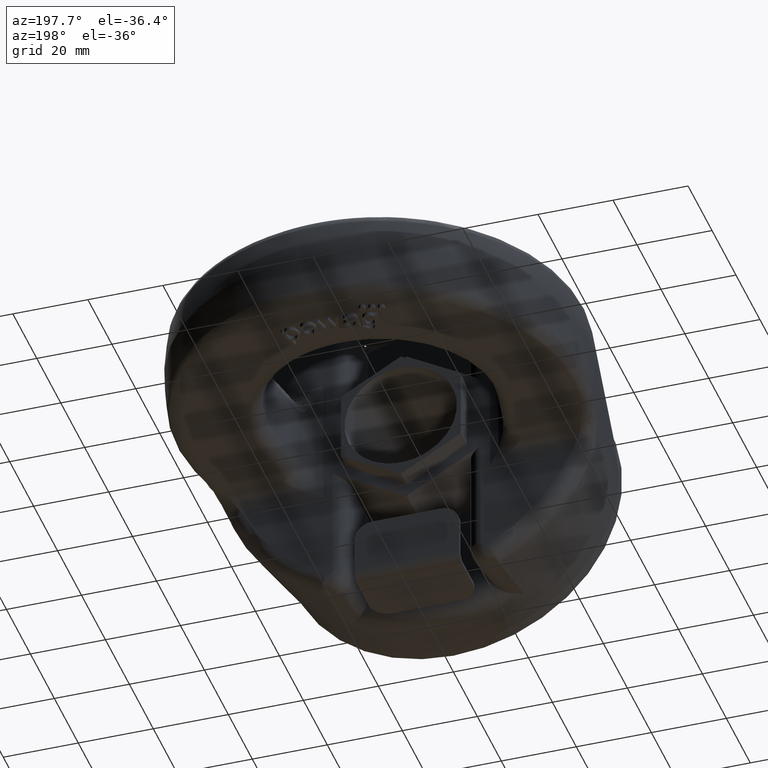
[diagram: clean part render]
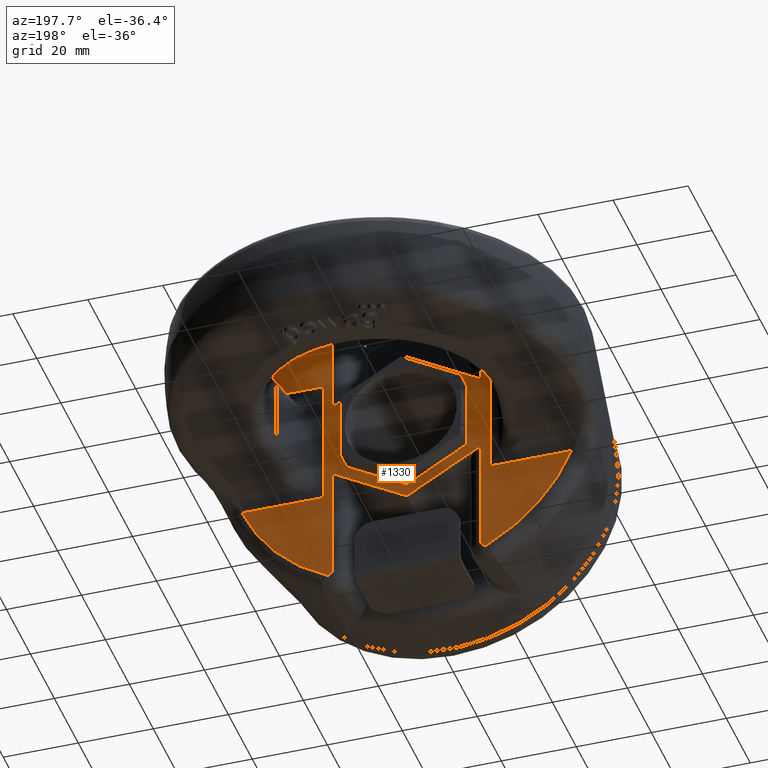
[diagram: same view with one face highlighted and labeled with its STEP entity id]
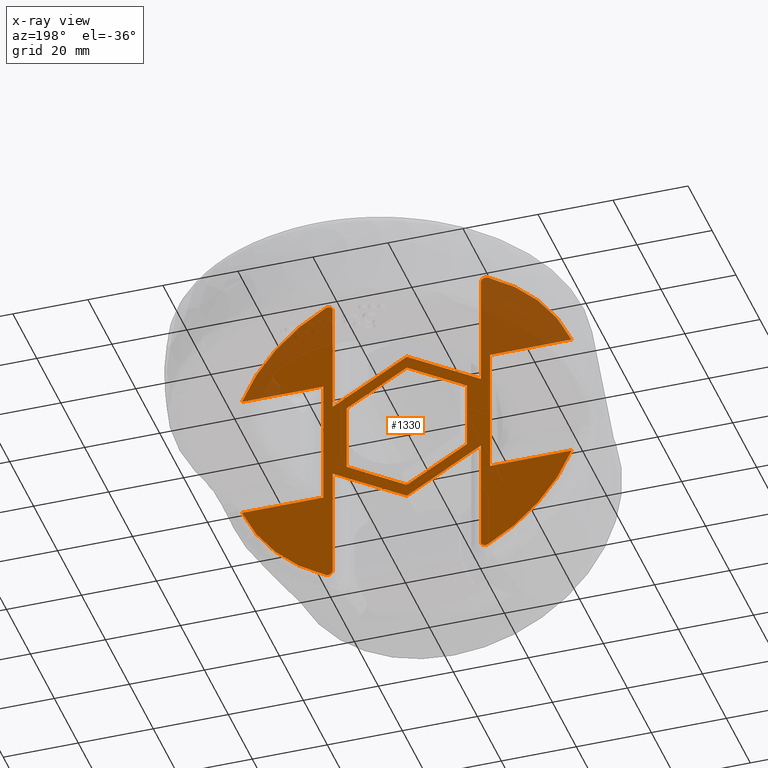
[diagram: x-ray of the same camera — body ghosted, the highlighted face saturated]
A machine part, auxiliary view. The second image highlights one B-rep face of the part: STEP entity #1330.
The next image is the same camera in x-ray: the body ghosted, the highlighted face saturated — about 29% of this face is hidden behind the body in this view.
In plain terms, the highlighted planar face has unit normal (0, 1, 0).
Its self-contained STEP definition (entity closure, byte-faithful):
#1330=ADVANCED_FACE('',(#1781,#1782),#1567,.T.);
#1567=PLANE('',#5133);
#1695=CIRCLE('',#5129,47.2865928838247);
#1696=CIRCLE('',#5130,47.2865928838247);
#1697=CIRCLE('',#5131,47.2865928838247);
#1698=CIRCLE('',#5132,47.2865928838247);
#1781=FACE_BOUND('',#1844,.T.);
#1782=FACE_BOUND('',#1845,.T.);
#1844=EDGE_LOOP('',(#2799,#2800,#2801,#2802,#2803,#2804,#2805,#2806,#2807,
#2808,#2809,#2810,#2811,#2812,#2813,#2814,#2815,#2816,#2817,#2818,#2819,
#2820));
#1845=EDGE_LOOP('',(#2821,#2822,#2823,#2824,#2825,#2826));
#2142=LINE('',#6684,#2412);
#2143=LINE('',#6687,#2413);
#2144=LINE('',#6714,#2414);
#2145=LINE('',#6716,#2415);
#2146=LINE('',#6718,#2416);
#2147=LINE('',#6720,#2417);
#2148=LINE('',#6744,#2418);
#2149=LINE('',#6746,#2419);
#2150=LINE('',#6748,#2420);
#2151=LINE('',#6775,#2421);
#2152=LINE('',#6777,#2422);
#2153=LINE('',#6779,#2423);
#2154=LINE('',#6781,#2424);
#2155=LINE('',#6805,#2425);
#2156=LINE('',#6806,#2426);
#2157=LINE('',#6809,#2427);
#2158=LINE('',#6811,#2428);
#2159=LINE('',#6813,#2429);
#2160=LINE('',#6815,#2430);
#2161=LINE('',#6817,#2431);
#2412=VECTOR('',#5471,1.);
#2413=VECTOR('',#5472,1.);
#2414=VECTOR('',#5475,1.);
#2415=VECTOR('',#5476,1.);
#2416=VECTOR('',#5477,1.);
#2417=VECTOR('',#5478,1.);
#2418=VECTOR('',#5481,1.);
#2419=VECTOR('',#5482,1.);
#2420=VECTOR('',#5483,1.);
#2421=VECTOR('',#5486,1.);
#2422=VECTOR('',#5487,1.);
#2423=VECTOR('',#5488,1.);
#2424=VECTOR('',#5489,1.);
#2425=VECTOR('',#5492,1.);
#2426=VECTOR('',#5493,1.);
#2427=VECTOR('',#5494,1.);
#2428=VECTOR('',#5495,1.);
#2429=VECTOR('',#5496,1.);
#2430=VECTOR('',#5497,1.);
#2431=VECTOR('',#5498,1.);
#2799=ORIENTED_EDGE('',*,*,#4351,.T.);
#2800=ORIENTED_EDGE('',*,*,#4352,.T.);
#2801=ORIENTED_EDGE('',*,*,#4353,.T.);
#2802=ORIENTED_EDGE('',*,*,#4354,.T.);
#2803=ORIENTED_EDGE('',*,*,#4355,.T.);
#2804=ORIENTED_EDGE('',*,*,#4356,.T.);
#2805=ORIENTED_EDGE('',*,*,#4357,.T.);
#2806=ORIENTED_EDGE('',*,*,#4358,.T.);
#2807=ORIENTED_EDGE('',*,*,#4359,.T.);
#2808=ORIENTED_EDGE('',*,*,#4360,.T.);
#2809=ORIENTED_EDGE('',*,*,#4361,.T.);
#2810=ORIENTED_EDGE('',*,*,#4362,.T.);
#2811=ORIENTED_EDGE('',*,*,#4363,.T.);
#2812=ORIENTED_EDGE('',*,*,#4364,.T.);
#2813=ORIENTED_EDGE('',*,*,#4365,.T.);
#2814=ORIENTED_EDGE('',*,*,#4366,.T.);
#2815=ORIENTED_EDGE('',*,*,#4367,.T.);
#2816=ORIENTED_EDGE('',*,*,#4368,.T.);
#2817=ORIENTED_EDGE('',*,*,#4369,.T.);
#2818=ORIENTED_EDGE('',*,*,#4370,.T.);
#2819=ORIENTED_EDGE('',*,*,#4371,.T.);
#2820=ORIENTED_EDGE('',*,*,#4372,.T.);
#2821=ORIENTED_EDGE('',*,*,#4373,.T.);
#2822=ORIENTED_EDGE('',*,*,#4374,.T.);
#2823=ORIENTED_EDGE('',*,*,#4375,.T.);
#2824=ORIENTED_EDGE('',*,*,#4376,.T.);
#2825=ORIENTED_EDGE('',*,*,#4377,.F.);
#2826=ORIENTED_EDGE('',*,*,#4378,.T.);
#3963=VERTEX_POINT('',#6685);
#3964=VERTEX_POINT('',#6686);
#3965=VERTEX_POINT('',#6688);
#3966=VERTEX_POINT('',#6690);
#3967=VERTEX_POINT('',#6713);
#3968=VERTEX_POINT('',#6715);
#3969=VERTEX_POINT('',#6717);
#3970=VERTEX_POINT('',#6719);
#3971=VERTEX_POINT('',#6721);
#3972=VERTEX_POINT('',#6741);
#3973=VERTEX_POINT('',#6743);
#3974=VERTEX_POINT('',#6745);
#3975=VERTEX_POINT('',#6747);
#3976=VERTEX_POINT('',#6749);
#3977=VERTEX_POINT('',#6751);
#3978=VERTEX_POINT('',#6774);
#3979=VERTEX_POINT('',#6776);
#3980=VERTEX_POINT('',#6778);
#3981=VERTEX_POINT('',#6780);
#3982=VERTEX_POINT('',#6782);
#3983=VERTEX_POINT('',#6802);
#3984=VERTEX_POINT('',#6804);
#3985=VERTEX_POINT('',#6807);
#3986=VERTEX_POINT('',#6808);
#3987=VERTEX_POINT('',#6810);
#3988=VERTEX_POINT('',#6812);
#3989=VERTEX_POINT('',#6814);
#3990=VERTEX_POINT('',#6816);
#4351=EDGE_CURVE('',#3963,#3964,#2142,.T.);
#4352=EDGE_CURVE('',#3964,#3965,#2143,.T.);
#4353=EDGE_CURVE('',#3965,#3966,#1695,.T.);
#4354=EDGE_CURVE('',#3966,#3967,#4878,.T.);
#4355=EDGE_CURVE('',#3967,#3968,#2144,.T.);
#4356=EDGE_CURVE('',#3968,#3969,#2145,.T.);
#4357=EDGE_CURVE('',#3969,#3970,#2146,.T.);
#4358=EDGE_CURVE('',#3970,#3971,#2147,.T.);
#4359=EDGE_CURVE('',#3971,#3972,#4879,.T.);
#4360=EDGE_CURVE('',#3972,#3973,#1696,.T.);
#4361=EDGE_CURVE('',#3973,#3974,#2148,.T.);
#4362=EDGE_CURVE('',#3974,#3975,#2149,.T.);
#4363=EDGE_CURVE('',#3975,#3976,#2150,.T.);
#4364=EDGE_CURVE('',#3976,#3977,#1697,.T.);
#4365=EDGE_CURVE('',#3977,#3978,#4880,.T.);
#4366=EDGE_CURVE('',#3978,#3979,#2151,.T.);
#4367=EDGE_CURVE('',#3979,#3980,#2152,.T.);
#4368=EDGE_CURVE('',#3980,#3981,#2153,.T.);
#4369=EDGE_CURVE('',#3981,#3982,#2154,.T.);
#4370=EDGE_CURVE('',#3982,#3983,#4881,.T.);
#4371=EDGE_CURVE('',#3983,#3984,#1698,.T.);
#4372=EDGE_CURVE('',#3984,#3963,#2155,.T.);
#4373=EDGE_CURVE('',#3985,#3986,#2156,.T.);
#4374=EDGE_CURVE('',#3986,#3987,#2157,.T.);
#4375=EDGE_CURVE('',#3987,#3988,#2158,.T.);
#4376=EDGE_CURVE('',#3988,#3989,#2159,.T.);
#4377=EDGE_CURVE('',#3990,#3989,#2160,.T.);
#4378=EDGE_CURVE('',#3990,#3985,#2161,.T.);
#4878=B_SPLINE_CURVE_WITH_KNOTS('',3,(#6691,#6692,#6693,#6694,#6695,#6696,
#6697,#6698,#6699,#6700,#6701,#6702,#6703,#6704,#6705,#6706,#6707,#6708,
#6709,#6710,#6711,#6712),.UNSPECIFIED.,.F.,.F.,(4,3,3,3,3,3,3,4),(0.,0.161379735076476,
0.322817284316198,0.483581680846193,0.645602352468238,0.810647740503238,
0.979259701387584,1.),.UNSPECIFIED.);
#4879=B_SPLINE_CURVE_WITH_KNOTS('',3,(#6722,#6723,#6724,#6725,#6726,#6727,
#6728,#6729,#6730,#6731,#6732,#6733,#6734,#6735,#6736,#6737,#6738,#6739,
#6740),.UNSPECIFIED.,.F.,.F.,(4,3,3,3,3,3,4),(0.,0.170810437629313,0.341729613949098,
0.510861886610194,0.67635795447875,0.838561292058408,1.),.UNSPECIFIED.);
#4880=B_SPLINE_CURVE_WITH_KNOTS('',3,(#6752,#6753,#6754,#6755,#6756,#6757,
#6758,#6759,#6760,#6761,#6762,#6763,#6764,#6765,#6766,#6767,#6768,#6769,
#6770,#6771,#6772,#6773),.UNSPECIFIED.,.F.,.F.,(4,3,3,3,3,3,3,4),(0.,0.161379735076477,
0.322817284316198,0.483581680846193,0.645602352468238,0.810647740503238,
0.979259701387584,1.),.UNSPECIFIED.);
#4881=B_SPLINE_CURVE_WITH_KNOTS('',3,(#6783,#6784,#6785,#6786,#6787,#6788,
#6789,#6790,#6791,#6792,#6793,#6794,#6795,#6796,#6797,#6798,#6799,#6800,
#6801),.UNSPECIFIED.,.F.,.F.,(4,3,3,3,3,3,4),(0.,0.170810437629314,0.341729613949099,
0.510861886610194,0.676357954478751,0.83856129205841,1.),.UNSPECIFIED.);
#5129=AXIS2_PLACEMENT_3D('',#6689,#5473,#5474);
#5130=AXIS2_PLACEMENT_3D('',#6742,#5479,#5480);
#5131=AXIS2_PLACEMENT_3D('',#6750,#5484,#5485);
#5132=AXIS2_PLACEMENT_3D('',#6803,#5490,#5491);
#5133=AXIS2_PLACEMENT_3D('',#6818,#5499,#5500);
#5471=DIRECTION('',(0.,0.,-1.));
#5472=DIRECTION('',(1.,0.,2.34291072916505E-15));
#5473=DIRECTION('',(0.,1.,0.));
#5474=DIRECTION('',(2.34291072916505E-15,0.,-1.));
#5475=DIRECTION('',(-2.34291072916505E-15,0.,1.));
#5476=DIRECTION('',(-0.866025403784438,0.,-0.500000000000002));
#5477=DIRECTION('',(-0.86602540378444,0.,0.499999999999997));
#5478=DIRECTION('',(2.34291072916505E-15,0.,-1.));
#5479=DIRECTION('',(0.,1.,0.));
#5480=DIRECTION('',(2.34291072916505E-15,0.,-1.));
#5481=DIRECTION('',(1.,0.,2.34291072916505E-15));
#5482=DIRECTION('',(0.,0.,1.));
#5483=DIRECTION('',(-1.,0.,0.));
#5484=DIRECTION('',(0.,1.,0.));
#5485=DIRECTION('',(0.,0.,1.));
#5486=DIRECTION('',(0.,0.,-1.));
#5487=DIRECTION('',(0.866025403784439,0.,0.5));
#5488=DIRECTION('',(0.866025403784439,0.,-0.499999999999999));
#5489=DIRECTION('',(0.,0.,1.));
#5490=DIRECTION('',(0.,1.,0.));
#5491=DIRECTION('',(0.,0.,1.));
#5492=DIRECTION('',(-1.,0.,0.));
#5493=DIRECTION('',(0.866025403784438,0.,0.500000000000001));
#5494=DIRECTION('',(0.,0.,1.));
#5495=DIRECTION('',(-0.866025403784439,0.,0.499999999999999));
#5496=DIRECTION('',(-0.866025403784439,0.,-0.499999999999999));
#5497=DIRECTION('',(0.,0.,1.));
#5498=DIRECTION('',(0.86602540378444,0.,-0.499999999999997));
#5499=DIRECTION('',(0.,1.,0.));
#5500=DIRECTION('',(0.,0.,1.));
#6684=CARTESIAN_POINT('',(22.2265672836431,39.,0.));
#6685=CARTESIAN_POINT('',(22.2265672836431,39.,17.5));
#6686=CARTESIAN_POINT('',(22.2265672836432,39.,-17.5));
#6687=CARTESIAN_POINT('',(26.3690886608367,39.,-17.4999999999999));
#6688=CARTESIAN_POINT('',(43.9291687442477,39.,-17.4999999999999));
#6689=CARTESIAN_POINT('',(1.26637660324685E-13,39.,-4.77779176153226E-14));
#6690=CARTESIAN_POINT('',(21.559989272144,39.,-42.0854930961445));
#6691=CARTESIAN_POINT('',(21.559989272144,39.,-42.0854930961445));
#6692=CARTESIAN_POINT('',(21.4376870540187,39.,-42.1481473343806));
#6693=CARTESIAN_POINT('',(21.3029566374001,39.,-42.1907328114198));
#6694=CARTESIAN_POINT('',(21.1668238906371,39.,-42.2094747799948));
#6695=CARTESIAN_POINT('',(21.0306586768623,39.,-42.2282212184401));
#6696=CARTESIAN_POINT('',(20.8893531303641,39.,-42.2236099015466));
#6697=CARTESIAN_POINT('',(20.7546934335023,39.,-42.1960570353102));
#6698=CARTESIAN_POINT('',(20.6205583231553,39.,-42.1686115052881));
#6699=CARTESIAN_POINT('',(20.4893603941383,39.,-42.1176845298853));
#6700=CARTESIAN_POINT('',(20.3716708755526,39.,-42.0477226676954));
#6701=CARTESIAN_POINT('',(20.2530461299273,39.,-41.9772048492398));
#6702=CARTESIAN_POINT('',(20.1449362429328,39.,-41.8854893045933));
#6703=CARTESIAN_POINT('',(20.0556639829611,39.,-41.7802512098084));
#6704=CARTESIAN_POINT('',(19.9647356840415,39.,-41.6730609029497));
#6705=CARTESIAN_POINT('',(19.8908883261947,39.,-41.5489923374411));
#6706=CARTESIAN_POINT('',(19.8396151697288,39.,-41.4181153690513));
#6707=CARTESIAN_POINT('',(19.7872503295101,39.,-41.2844518302638));
#6708=CARTESIAN_POINT('',(19.7570028489362,39.,-41.1400779647963));
#6709=CARTESIAN_POINT('',(19.7511035959102,39.,-40.9966442975279));
#6710=CARTESIAN_POINT('',(19.7503680064558,39.,-40.9787592716489));
#6711=CARTESIAN_POINT('',(19.7500000000001,39.,-40.9608553458286));
#6712=CARTESIAN_POINT('',(19.7500000000001,39.,-40.9429551993896));
#6713=CARTESIAN_POINT('',(19.7500000000001,39.,-40.9429551993896));
#6714=CARTESIAN_POINT('',(19.7500000000001,39.,-60.5));
#6715=CARTESIAN_POINT('',(19.75,39.,-10.5366424127106));
#6716=CARTESIAN_POINT('',(9.50000000000002,39.0000000000001,-16.4544826719043));
#6717=CARTESIAN_POINT('',(5.15102655437352E-14,39.0000000000001,-21.9393102292058));
#6718=CARTESIAN_POINT('',(-9.49999999999994,39.0000000000001,-16.4544826719044));
#6719=CARTESIAN_POINT('',(-19.75,39.,-10.5366424127107));
#6720=CARTESIAN_POINT('',(-19.7499999999999,39.,-60.5000000000001));
#6721=CARTESIAN_POINT('',(-19.7499999999999,39.,-40.9429551993896));
#6722=CARTESIAN_POINT('',(-19.7499999999999,39.,-40.9429551993896));
#6723=CARTESIAN_POINT('',(-19.7499999999999,39.,-41.0884116115924));
#6724=CARTESIAN_POINT('',(-19.7749484929304,39.,-41.2358781560344));
#6725=CARTESIAN_POINT('',(-19.8229633490812,39.,-41.373181256654));
#6726=CARTESIAN_POINT('',(-19.870995190916,39.,-41.5105329294714));
#6727=CARTESIAN_POINT('',(-19.9434931318007,39.,-41.6415448687736));
#6728=CARTESIAN_POINT('',(-20.0347197689157,39.,-41.7549037702171));
#6729=CARTESIAN_POINT('',(-20.124981916415,39.,-41.8670641896519));
#6730=CARTESIAN_POINT('',(-20.2361826502163,39.,-41.9650963135186));
#6731=CARTESIAN_POINT('',(-20.3590574017108,39.,-42.0401230447826));
#6732=CARTESIAN_POINT('',(-20.479320726349,39.,-42.1135552513898));
#6733=CARTESIAN_POINT('',(-20.6141900479079,39.,-42.1670047069527));
#6734=CARTESIAN_POINT('',(-20.752180227206,39.,-42.1955400646258));
#6735=CARTESIAN_POINT('',(-20.8874811220199,39.,-42.2235192979787));
#6736=CARTESIAN_POINT('',(-21.0295562711417,39.,-42.2283281820263));
#6737=CARTESIAN_POINT('',(-21.1664348065021,39.,-42.2095282832491));
#6738=CARTESIAN_POINT('',(-21.3027014148438,39.,-42.1908124310025));
#6739=CARTESIAN_POINT('',(-21.4375721931561,39.,-42.1482061764848));
#6740=CARTESIAN_POINT('',(-21.5599892721457,39.,-42.0854930961435));
#6741=CARTESIAN_POINT('',(-21.5599892721457,39.,-42.0854930961435));
#6742=CARTESIAN_POINT('',(1.26637660324685E-13,39.,-4.77779176153226E-14));
#6743=CARTESIAN_POINT('',(-43.9291687442475,39.,-17.5000000000001));
#6744=CARTESIAN_POINT('',(26.3690886608367,39.,-17.4999999999999));
#6745=CARTESIAN_POINT('',(-22.2265672836431,39.,-17.5000000000001));
#6746=CARTESIAN_POINT('',(-22.2265672836431,39.,12.5));
#6747=CARTESIAN_POINT('',(-22.2265672836431,39.,17.5));
#6748=CARTESIAN_POINT('',(-26.3690886608366,39.,17.5));
#6749=CARTESIAN_POINT('',(-43.9291687442477,39.,17.5));
#6750=CARTESIAN_POINT('',(-1.26637660324685E-13,39.,4.77779176153229E-14));
#6751=CARTESIAN_POINT('',(-21.5599892721439,39.,42.0854930961446));
#6752=CARTESIAN_POINT('',(-21.5599892721439,39.,42.0854930961446));
#6753=CARTESIAN_POINT('',(-21.4376870540186,39.,42.1481473343806));
#6754=CARTESIAN_POINT('',(-21.3029566374,39.,42.1907328114199));
#6755=CARTESIAN_POINT('',(-21.166823890637,39.,42.2094747799949));
#6756=CARTESIAN_POINT('',(-21.0306586768622,39.,42.2282212184401));
#6757=CARTESIAN_POINT('',(-20.889353130364,39.,42.2236099015466));
#6758=CARTESIAN_POINT('',(-20.7546934335022,39.,42.1960570353103));
#6759=CARTESIAN_POINT('',(-20.6205583231552,39.,42.1686115052881));
#6760=CARTESIAN_POINT('',(-20.4893603941382,39.,42.1176845298854));
#6761=CARTESIAN_POINT('',(-20.3716708755525,39.,42.0477226676955));
#6762=CARTESIAN_POINT('',(-20.2530461299272,39.,41.9772048492399));
#6763=CARTESIAN_POINT('',(-20.1449362429327,39.,41.8854893045933));
#6764=CARTESIAN_POINT('',(-20.055663982961,39.,41.7802512098085));
#6765=CARTESIAN_POINT('',(-19.9647356840414,39.,41.6730609029498));
#6766=CARTESIAN_POINT('',(-19.8908883261946,39.,41.5489923374412));
#6767=CARTESIAN_POINT('',(-19.8396151697287,39.,41.4181153690514));
#6768=CARTESIAN_POINT('',(-19.78725032951,39.,41.2844518302639));
#6769=CARTESIAN_POINT('',(-19.7570028489361,39.,41.1400779647964));
#6770=CARTESIAN_POINT('',(-19.7511035959101,39.,40.996644297528));
#6771=CARTESIAN_POINT('',(-19.7503680064558,39.,40.978759271649));
#6772=CARTESIAN_POINT('',(-19.75,39.,40.9608553458286));
#6773=CARTESIAN_POINT('',(-19.75,39.,40.9429551993896));
#6774=CARTESIAN_POINT('',(-19.75,39.,40.9429551993896));
#6775=CARTESIAN_POINT('',(-19.75,39.,60.5000000000001));
#6776=CARTESIAN_POINT('',(-19.75,39.,10.5366424127107));
#6777=CARTESIAN_POINT('',(-9.49999999999998,39.0000000000001,16.4544826719043));
#6778=CARTESIAN_POINT('',(-1.08420217248551E-16,39.0000000000001,21.9393102292058));
#6779=CARTESIAN_POINT('',(9.49999999999998,39.0000000000001,16.4544826719043));
#6780=CARTESIAN_POINT('',(19.75,39.,10.5366424127107));
#6781=CARTESIAN_POINT('',(19.75,39.,60.5000000000001));
#6782=CARTESIAN_POINT('',(19.75,39.,40.9429551993895));
#6783=CARTESIAN_POINT('',(19.75,39.,40.9429551993895));
#6784=CARTESIAN_POINT('',(19.75,39.,41.0884116115924));
#6785=CARTESIAN_POINT('',(19.7749484929305,39.,41.2358781560343));
#6786=CARTESIAN_POINT('',(19.8229633490812,39.,41.3731812566539));
#6787=CARTESIAN_POINT('',(19.8709951909161,39.,41.5105329294713));
#6788=CARTESIAN_POINT('',(19.9434931318008,39.,41.6415448687735));
#6789=CARTESIAN_POINT('',(20.0347197689158,39.,41.754903770217));
#6790=CARTESIAN_POINT('',(20.1249819164151,39.,41.8670641896518));
#6791=CARTESIAN_POINT('',(20.2361826502164,39.,41.9650963135186));
#6792=CARTESIAN_POINT('',(20.3590574017109,39.,42.0401230447826));
#6793=CARTESIAN_POINT('',(20.4793207263491,39.,42.1135552513898));
#6794=CARTESIAN_POINT('',(20.614190047908,39.,42.1670047069527));
#6795=CARTESIAN_POINT('',(20.7521802272061,39.,42.1955400646257));
#6796=CARTESIAN_POINT('',(20.88748112202,39.,42.2235192979787));
#6797=CARTESIAN_POINT('',(21.0295562711418,39.,42.2283281820263));
#6798=CARTESIAN_POINT('',(21.1664348065022,39.,42.209528283249));
#6799=CARTESIAN_POINT('',(21.3027014148439,39.,42.1908124310024));
#6800=CARTESIAN_POINT('',(21.4375721931562,39.,42.1482061764848));
#6801=CARTESIAN_POINT('',(21.5599892721458,39.,42.0854930961434));
#6802=CARTESIAN_POINT('',(21.5599892721458,39.,42.0854930961434));
#6803=CARTESIAN_POINT('',(-1.26637660324685E-13,39.,4.77779176153229E-14));
#6804=CARTESIAN_POINT('',(43.9291687442475,39.,17.5));
#6805=CARTESIAN_POINT('',(-26.3690886608366,39.,17.5));
#6806=CARTESIAN_POINT('',(16.,39.0000000000001,-9.23760430703397));
#6807=CARTESIAN_POINT('',(3.9816315446701E-14,39.0000000000001,-18.475208614068));
#6808=CARTESIAN_POINT('',(16.,39.,-9.23760430703396));
#6809=CARTESIAN_POINT('',(16.,39.,60.5000000000001));
#6810=CARTESIAN_POINT('',(16.,39.,9.23760430703401));
#6811=CARTESIAN_POINT('',(0.,39.0000000000001,18.475208614068));
#6812=CARTESIAN_POINT('',(3.46944903876145E-15,39.0000000000001,18.475208614068));
#6813=CARTESIAN_POINT('',(-16.,39.0000000000001,9.237604307034));
#6814=CARTESIAN_POINT('',(-16.,39.,9.237604307034));
#6815=CARTESIAN_POINT('',(-16.,39.,60.5000000000001));
#6816=CARTESIAN_POINT('',(-16.,39.,-9.23760430703405));
#6817=CARTESIAN_POINT('',(4.32857644854624E-14,39.0000000000001,-18.475208614068));
#6818=CARTESIAN_POINT('',(-26.3690886608366,39.,60.5000000000001));